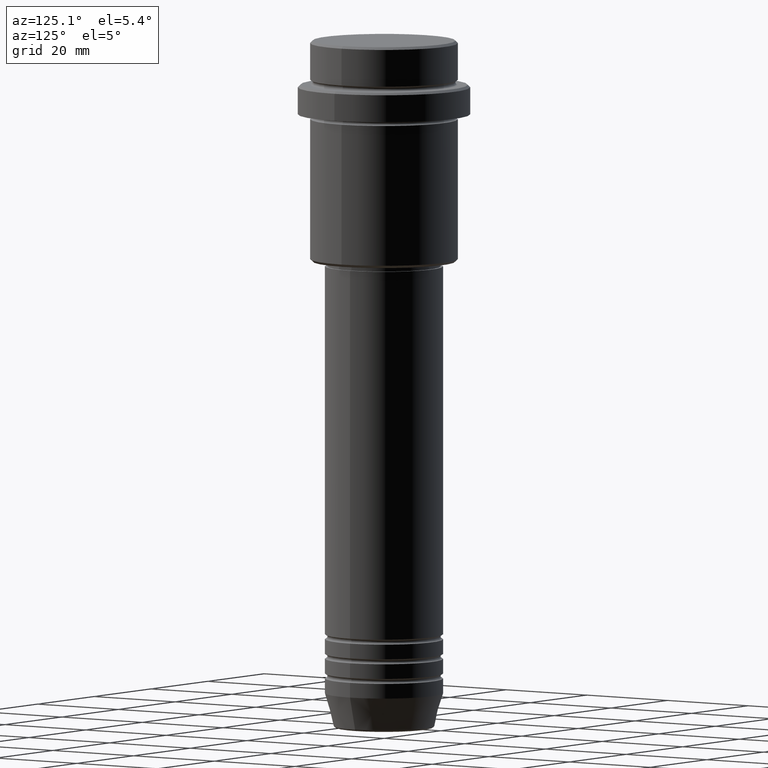
[diagram: clean part render]
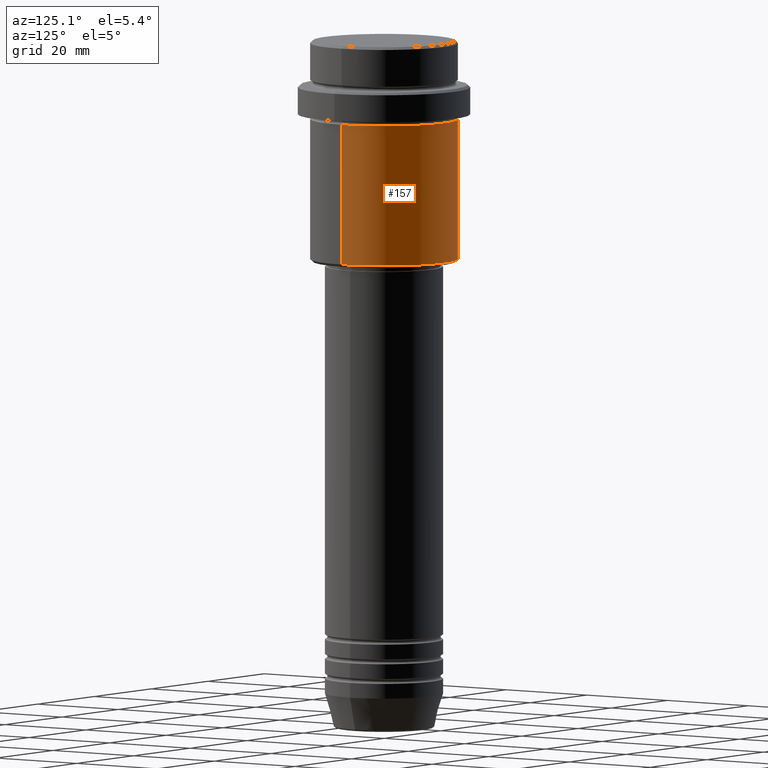
[diagram: same view with one face highlighted and labeled with its STEP entity id]
A machine part, auxiliary view. The second image highlights one B-rep face of the part: STEP entity #157.
In plain terms, the highlighted cylindrical surface (partial cylindrical patch) has radius 15 mm, axis along (-0, -0, 1).
Its self-contained STEP definition (entity closure, byte-faithful):
#8 = EDGE_CURVE ( 'NONE', #1209, #921, #1325, .T. ) ;
#19 = ORIENTED_EDGE ( 'NONE', *, *, #68, .F. ) ;
#51 = CARTESIAN_POINT ( 'NONE',  ( 0.000000000000000000, 0.000000000000000000, 0.000000000000000000 ) ) ;
#68 = EDGE_CURVE ( 'NONE', #1036, #200, #236, .T. ) ;
#129 = EDGE_CURVE ( 'NONE', #200, #921, #886, .T. ) ;
#142 = DIRECTION ( 'NONE',  ( 1.000000000000000000, 0.000000000000000000, 0.000000000000000000 ) ) ;
#157 = ADVANCED_FACE ( 'NONE', ( #810 ), #1015, .T. ) ;
#200 = VERTEX_POINT ( 'NONE', #470 ) ;
#204 = CARTESIAN_POINT ( 'NONE',  ( -15.00000000000000355, 1.836970198721029983E-15, -16.00000000000000000 ) ) ;
#209 = DIRECTION ( 'NONE',  ( -0.000000000000000000, -0.000000000000000000, 1.000000000000000000 ) ) ;
#236 = LINE ( 'NONE', #663, #911 ) ;
#350 = DIRECTION ( 'NONE',  ( -0.000000000000000000, -0.000000000000000000, 1.000000000000000000 ) ) ;
#412 = AXIS2_PLACEMENT_3D ( 'NONE', #484, #350, #1239 ) ;
#470 = CARTESIAN_POINT ( 'NONE',  ( 15.00000000000000178, 0.000000000000000000, -16.00000000000000000 ) ) ;
#484 = CARTESIAN_POINT ( 'NONE',  ( 0.000000000000000000, 0.000000000000000000, -16.00000000000000000 ) ) ;
#515 = CARTESIAN_POINT ( 'NONE',  ( -15.00000000000000000, 1.836970198721029589E-15, -44.50000000000001421 ) ) ;
#607 = EDGE_LOOP ( 'NONE', ( #1024, #683, #1262, #19 ) ) ;
#632 = DIRECTION ( 'NONE',  ( -1.000000000000000000, 0.000000000000000000, 0.000000000000000000 ) ) ;
#663 = CARTESIAN_POINT ( 'NONE',  ( 15.00000000000000000, 0.000000000000000000, 0.000000000000000000 ) ) ;
#678 = AXIS2_PLACEMENT_3D ( 'NONE', #51, #1119, #142 ) ;
#683 = ORIENTED_EDGE ( 'NONE', *, *, #8, .T. ) ;
#810 = FACE_OUTER_BOUND ( 'NONE', #607, .T. ) ;
#864 = DIRECTION ( 'NONE',  ( -0.000000000000000000, -0.000000000000000000, 1.000000000000000000 ) ) ;
#873 = DIRECTION ( 'NONE',  ( -0.000000000000000000, -0.000000000000000000, 1.000000000000000000 ) ) ;
#886 = CIRCLE ( 'NONE', #412, 15.00000000000000178 ) ;
#888 = EDGE_CURVE ( 'NONE', #1036, #1209, #987, .T. ) ;
#911 = VECTOR ( 'NONE', #864, 1000.000000000000000 ) ;
#921 = VERTEX_POINT ( 'NONE', #204 ) ;
#925 = CARTESIAN_POINT ( 'NONE',  ( 15.00000000000000000, 0.000000000000000000, -44.50000000000001421 ) ) ;
#987 = CIRCLE ( 'NONE', #1153, 15.00000000000000000 ) ;
#1015 = CYLINDRICAL_SURFACE ( 'NONE', #678, 15.00000000000000000 ) ;
#1024 = ORIENTED_EDGE ( 'NONE', *, *, #888, .T. ) ;
#1036 = VERTEX_POINT ( 'NONE', #925 ) ;
#1082 = CARTESIAN_POINT ( 'NONE',  ( -15.00000000000000000, 1.836970198721029589E-15, 0.000000000000000000 ) ) ;
#1119 = DIRECTION ( 'NONE',  ( -0.000000000000000000, -0.000000000000000000, 1.000000000000000000 ) ) ;
#1153 = AXIS2_PLACEMENT_3D ( 'NONE', #1404, #209, #632 ) ;
#1209 = VERTEX_POINT ( 'NONE', #515 ) ;
#1239 = DIRECTION ( 'NONE',  ( 1.000000000000000000, 0.000000000000000000, 0.000000000000000000 ) ) ;
#1262 = ORIENTED_EDGE ( 'NONE', *, *, #129, .F. ) ;
#1325 = LINE ( 'NONE', #1082, #1353 ) ;
#1353 = VECTOR ( 'NONE', #873, 1000.000000000000000 ) ;
#1404 = CARTESIAN_POINT ( 'NONE',  ( 0.000000000000000000, 0.000000000000000000, -44.50000000000001421 ) ) ;